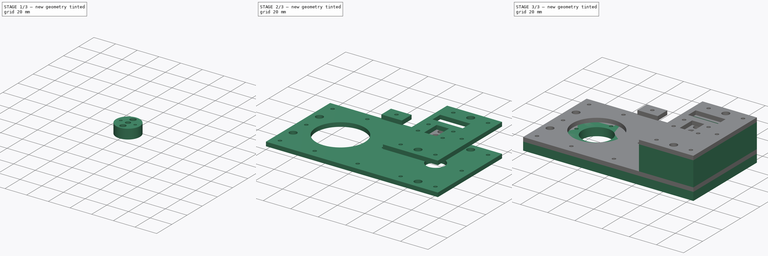
[diagram: build sequence overview — one tinted view per stage of 3, left to right]
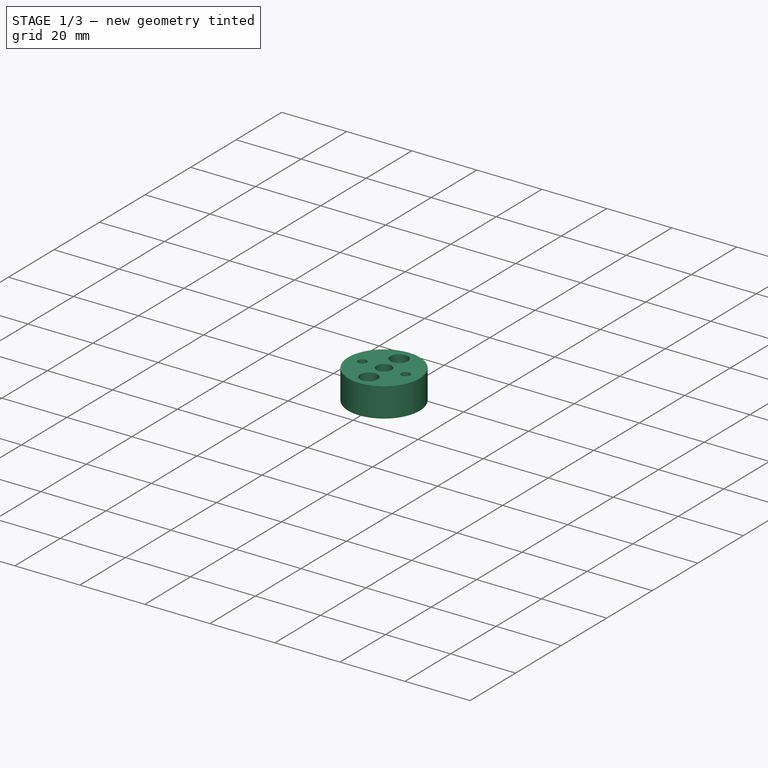
[diagram: stage 1 of 3 — iso view after this stage's code; geometry added in this stage tinted green]
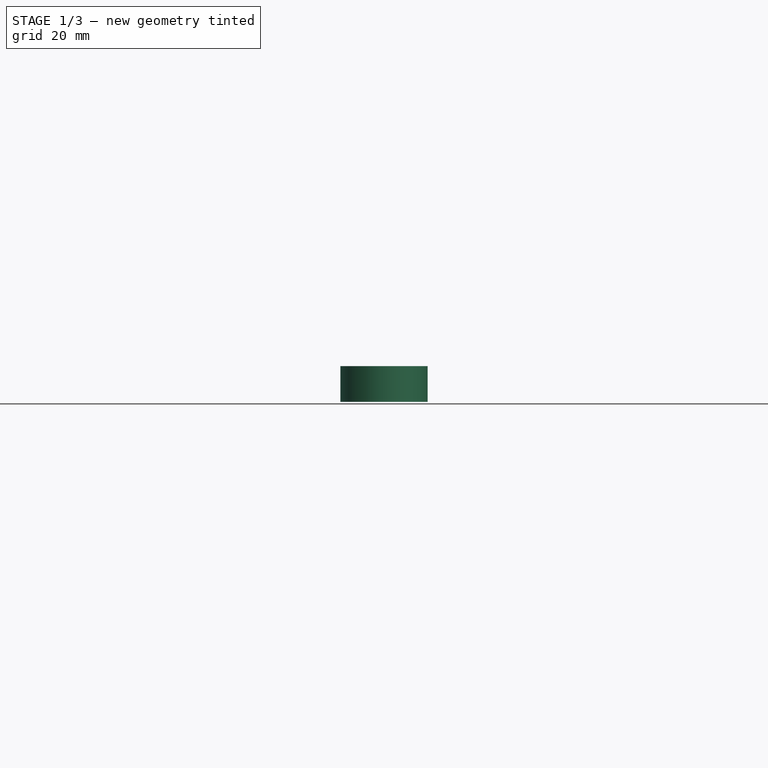
[diagram: stage 1 of 3 — front view after this stage's code; geometry added in this stage tinted green]
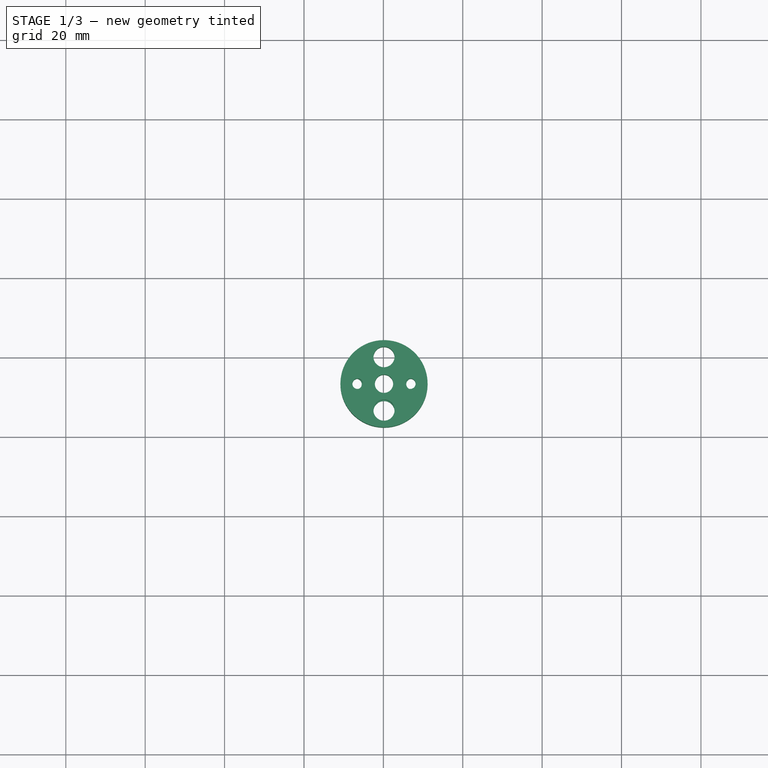
[diagram: stage 1 of 3 — top view after this stage's code; geometry added in this stage tinted green]
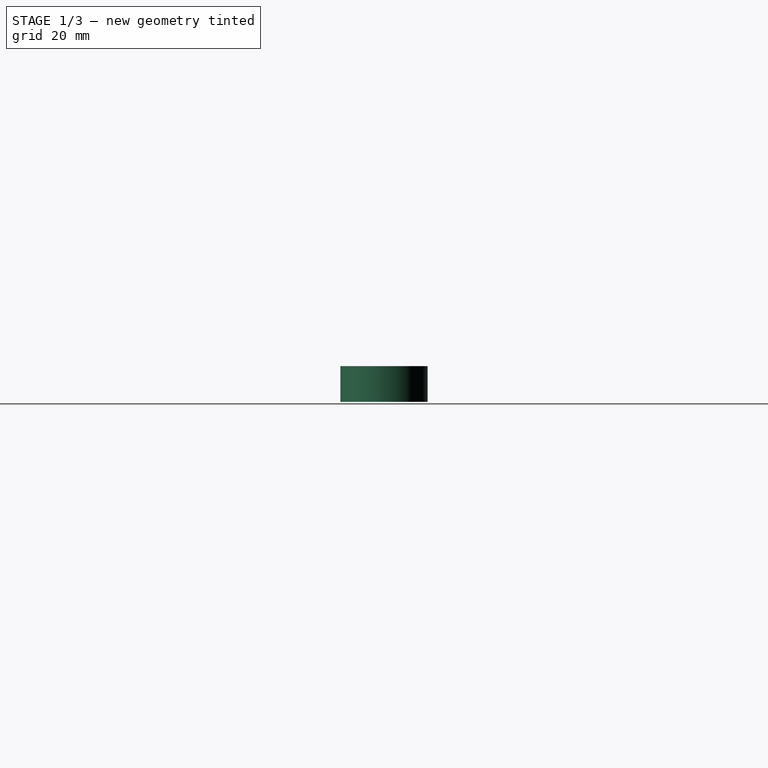
[diagram: stage 1 of 3 — right view after this stage's code; geometry added in this stage tinted green]
FCSTD DOCUMENT  (FreeCAD 0.16R6706 (Git))
Label: angular
License: All rights reserved
LicenseURL: http://en.wikipedia.org/wiki/All_rights_reserved
objects: Sketcher::SketchObject×7, PartDesign::Pad×7, App::MeasureDistance×4, Spreadsheet::Sheet×2
note: 21 computed .brp shape members not serialized (recipe doc carries the construction recipe); baked Part::Feature solids carry a one-line shape summary decoded from their .brp

FEATURE [App::MeasureDistance] Distance005  label="Distance: 26.1896 mm"
  Distance = 26.1896
  P1 = (60.7477,0,9)
  P2 = (34.5581,0,9)
FEATURE [Sketcher::SketchObject] Sketch006
  Placement = pos=(0,0,18) rot=(0,0,1;0rad)
  expr: Placement.Base.z = Measure.MAT_THICK * 6
  expr: Constraints[5] = Measure.BASE_WIDTH / 2
  expr: Constraints[4] = Measure.BASE_LEN
  expr: Constraints[3] = Measure.BASE_WIDTH / 2
  expr: Constraints[0] = Measure.MAT_THICK * 2 + Measure.SHAFT_DIAM
  expr: Constraints[2] = Measure.SHAFT_DIAM / 2 - Measure.KERF_FIT
  sketch-geometry (15):
    g0: Circle CenterX=100.16 CenterY=33.36 CenterZ=0 NormalX=0 NormalY=0 NormalZ=1 Radius=2.31
    g1: Circle CenterX=100.16 CenterY=33.36 CenterZ=0 NormalX=0 NormalY=0 NormalZ=1 Radius=10.98
    g2: GeomPoint [constr] X=125.16 Y=33.36 Z=0
    g3: Circle CenterX=100.16 CenterY=40.005 CenterZ=0 NormalX=0 NormalY=0 NormalZ=1 Radius=2.67
    g4: LineSegment [constr] StartX=100.16 StartY=33.36 StartZ=0 EndX=111.14 EndY=33.36 EndZ=0
    g5: LineSegment [constr] StartX=100.16 StartY=33.36 StartZ=0 EndX=100.16 EndY=44.34 EndZ=0
    g6: GeomPoint [constr] X=100.16 Y=35.67 Z=0
    g7: LineSegment [constr] StartX=100.16 StartY=33.36 StartZ=0 EndX=89.18 EndY=33.36 EndZ=0
    g8: LineSegment [constr] StartX=100.16 StartY=33.36 StartZ=0 EndX=100.16 EndY=22.38 EndZ=0
    g9: Circle CenterX=100.16 CenterY=26.715 CenterZ=0 NormalX=0 NormalY=0 NormalZ=1 Radius=2.67
    g10: GeomPoint [constr] X=97.85 Y=33.36 Z=0
    g11: GeomPoint [constr] X=100.16 Y=31.05 Z=0
    g12: GeomPoint [constr] X=102.47 Y=33.36 Z=0
    g13: Circle CenterX=106.805 CenterY=33.36 CenterZ=0 NormalX=0 NormalY=0 NormalZ=1 Radius=1.32
    g14: Circle CenterX=93.515 CenterY=33.36 CenterZ=0 NormalX=0 NormalY=0 NormalZ=1 Radius=1.32
  constraints (38):
    c: Radius(g1) = 10.98
    c: Coincident(g1,g0)
    c: Radius(g0) = 2.31
    c: DistanceY(g-1,g2) = 33.36
    c: DistanceX(g-2,g2) = 125.16
    c: DistanceY(g-1,g0) = 33.36
    c: Distance(g0,g2) = 25
    c: Radius(g3) = 2.67
    c: Coincident(g4,g0)
    c: Horizontal(g4)
    c: Coincident(g5,g0)
    c: Angle(g4,g5) = 1.5708
    c: PointOnObject(g3,g5)
    c: PointOnObject(g5,g1)
    c: PointOnObject(g4,g1)
    c: PointOnObject(g6,g0)
    c: PointOnObject(g6,g5)
    c: Symmetric(g6,g5,g3)
    c: Coincident(g7,g0)
    c: PointOnObject(g7,g1)
    c: Coincident(g8,g0)
    c: PointOnObject(g8,g1)
    c: Angle(g7,g4) = 3.14159
    c: Angle(g8,g4) = 1.5708
    c: Radius(g9) = 2.67
    c: PointOnObject(g9,g8)
    c: PointOnObject(g10,g0)
    c: PointOnObject(g10,g7)
    c: PointOnObject(g11,g0)
    c: PointOnObject(g11,g8)
    c: PointOnObject(g12,g0)
    c: PointOnObject(g12,g4)
    c: Symmetric(g8,g11,g9)
    c: Radius(g13) = 1.32
    c: PointOnObject(g13,g4)
    c: Symmetric(g12,g4,g13)
    c: Radius(g14) = 1.32
    c: Symmetric(g7,g10,g14)
FEATURE [PartDesign::Pad] Pad006  label="MAGNET_SHAFT_HOLDER"
  Length = 9
  Length2 = 100
  Placement = pos=(0,0,18) rot=(0,0,1;0rad)
  Sketch = -> Sketch006
  Type = 0
  expr: Length = Measure.MAT_THICK * 3
FEATURE [Sketcher::SketchObject] Sketch007
  Placement = pos=(0,0,27) rot=(0,0,1;0rad)
  expr: Placement.Base.z = Measure.MAT_THICK * 9
  expr: Constraints[5] = Measure.BASE_WIDTH / 2
  expr: Constraints[4] = Measure.BASE_LEN
  expr: Constraints[3] = Measure.BASE_WIDTH / 2
  expr: Constraints[0] = Measure.MAT_THICK * 2 + Measure.SHAFT_DIAM
  expr: Constraints[2] = 6.1 / 2 - Measure.KERF_FIT
  sketch-geometry (15):
    g0: Circle CenterX=100.16 CenterY=33.36 CenterZ=0 NormalX=0 NormalY=0 NormalZ=1 Radius=2.87
    g1: Circle CenterX=100.16 CenterY=33.36 CenterZ=0 NormalX=0 NormalY=0 NormalZ=1 Radius=10.98
    g2: GeomPoint [constr] X=125.16 Y=33.36 Z=0
    g3: Circle CenterX=100.16 CenterY=40.285 CenterZ=0 NormalX=0 NormalY=0 NormalZ=1 Radius=2.67
    g4: LineSegment [constr] StartX=100.16 StartY=33.36 StartZ=0 EndX=111.14 EndY=33.36 EndZ=0
    g5: LineSegment [constr] StartX=100.16 StartY=33.36 StartZ=0 EndX=100.16 EndY=44.34 EndZ=0
    g6: GeomPoint [constr] X=100.16 Y=36.23 Z=0
    g7: LineSegment [constr] StartX=100.16 StartY=33.36 StartZ=0 EndX=89.18 EndY=33.36 EndZ=0
    g8: LineSegment [constr] StartX=100.16 StartY=33.36 StartZ=0 EndX=100.16 EndY=22.38 EndZ=0
    g9: Circle CenterX=100.16 CenterY=26.435 CenterZ=0 NormalX=0 NormalY=0 NormalZ=1 Radius=2.67
    g10: GeomPoint [constr] X=97.29 Y=33.36 Z=0
    g11: GeomPoint [constr] X=100.16 Y=30.49 Z=0
    g12: GeomPoint [constr] X=103.03 Y=33.36 Z=0
    g13: Circle CenterX=107.085 CenterY=33.36 CenterZ=0 NormalX=0 NormalY=0 NormalZ=1 Radius=1.32
    g14: Circle CenterX=93.235 CenterY=33.36 CenterZ=0 NormalX=0 NormalY=0 NormalZ=1 Radius=1.32
  constraints (38):
    c: Radius(g1) = 10.98
    c: Coincident(g1,g0)
    c: Radius(g0) = 2.87
    c: DistanceY(g-1,g2) = 33.36
    c: DistanceX(g-2,g2) = 125.16
    c: DistanceY(g-1,g0) = 33.36
    c: Distance(g0,g2) = 25
    c: Radius(g3) = 2.67
    c: Coincident(g4,g0)
    c: Horizontal(g4)
    c: Coincident(g5,g0)
    c: Angle(g4,g5) = 1.5708
    c: PointOnObject(g3,g5)
    c: PointOnObject(g5,g1)
    c: PointOnObject(g4,g1)
    c: PointOnObject(g6,g0)
    c: PointOnObject(g6,g5)
    c: Symmetric(g6,g5,g3)
    c: Coincident(g7,g0)
    c: PointOnObject(g7,g1)
    c: Coincident(g8,g0)
    c: PointOnObject(g8,g1)
    c: Angle(g7,g4) = 3.14159
    c: Angle(g8,g4) = 1.5708
    c: Radius(g9) = 2.67
    c: PointOnObject(g9,g8)
    c: PointOnObject(g10,g0)
    c: PointOnObject(g10,g7)
    c: PointOnObject(g11,g0)
    c: PointOnObject(g11,g8)
    c: PointOnObject(g12,g0)
    c: PointOnObject(g12,g4)
    c: Symmetric(g8,g11,g9)
    c: Radius(g13) = 1.32
    c: PointOnObject(g13,g4)
    c: Symmetric(g12,g4,g13)
    c: Radius(g14) = 1.32
    c: Symmetric(g7,g10,g14)
FEATURE [PartDesign::Pad] Pad007
  Length = 3
  Length2 = 100
  Placement = pos=(0,0,18) rot=(0,0,1;0rad)
  Sketch = -> Sketch007
  Type = 0
  expr: Length = Measure.MAT_THICK
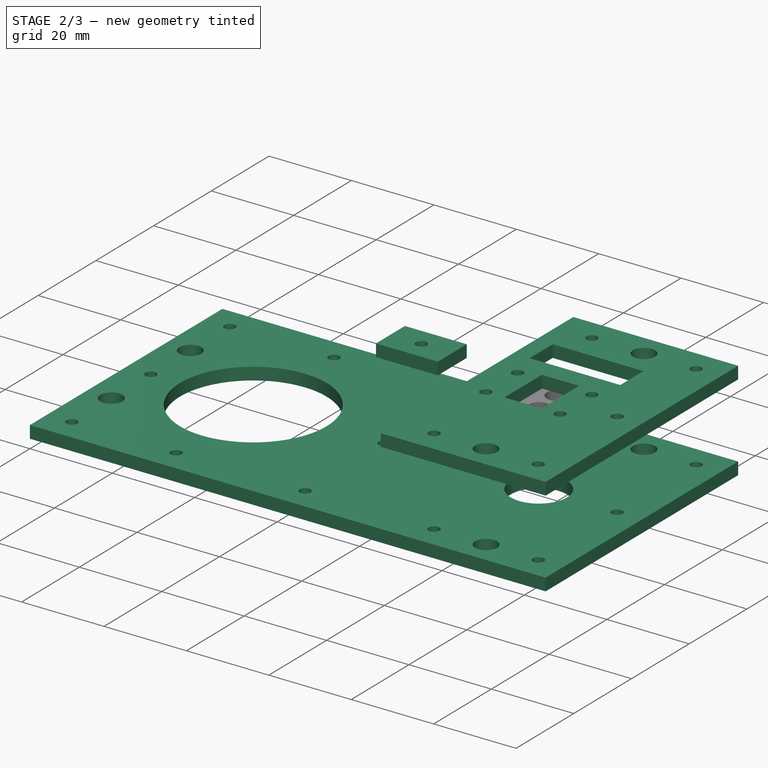
[diagram: stage 2 of 3 — iso view after this stage's code; geometry added in this stage tinted green]
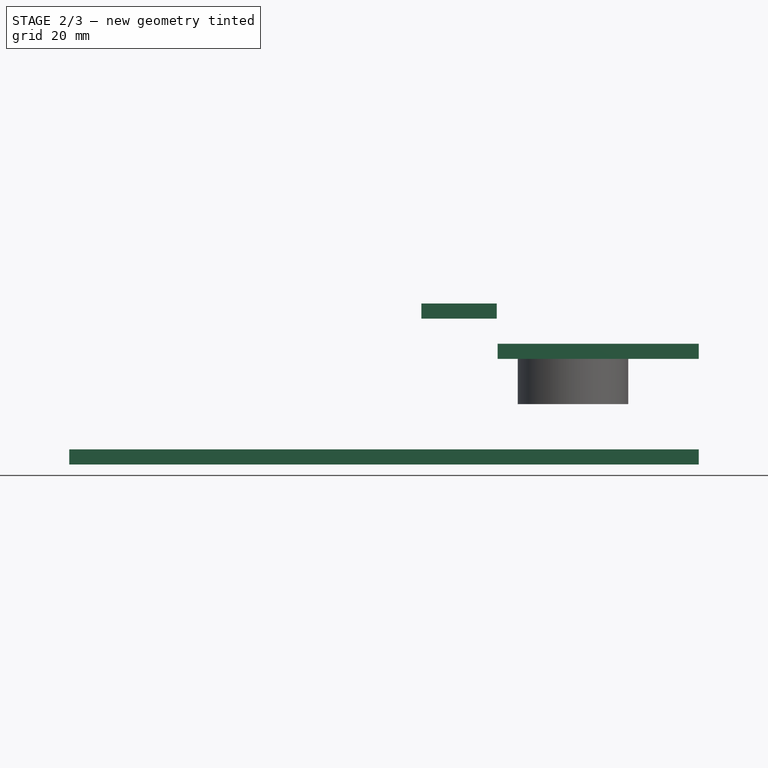
[diagram: stage 2 of 3 — front view after this stage's code; geometry added in this stage tinted green]
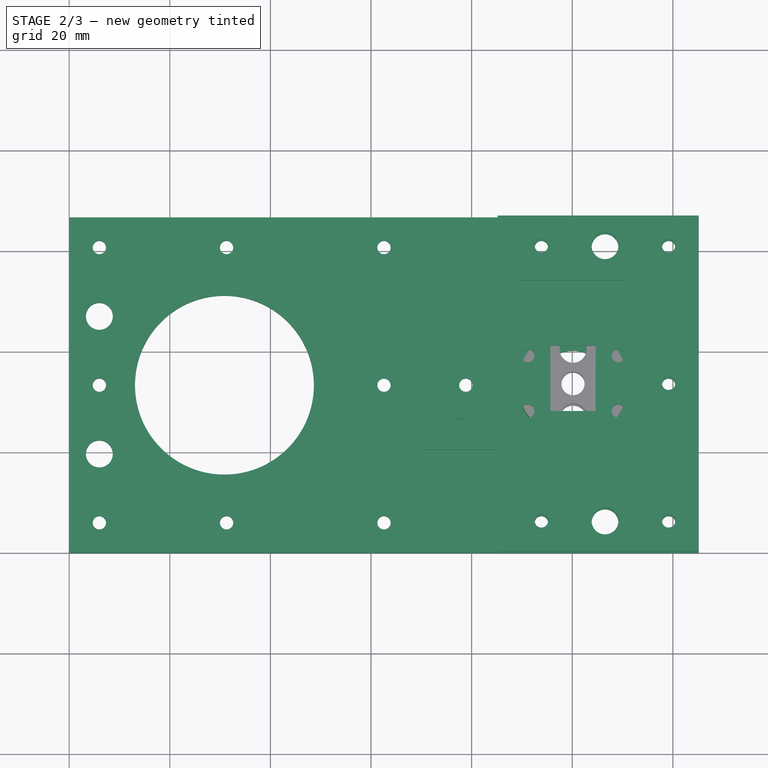
[diagram: stage 2 of 3 — top view after this stage's code; geometry added in this stage tinted green]
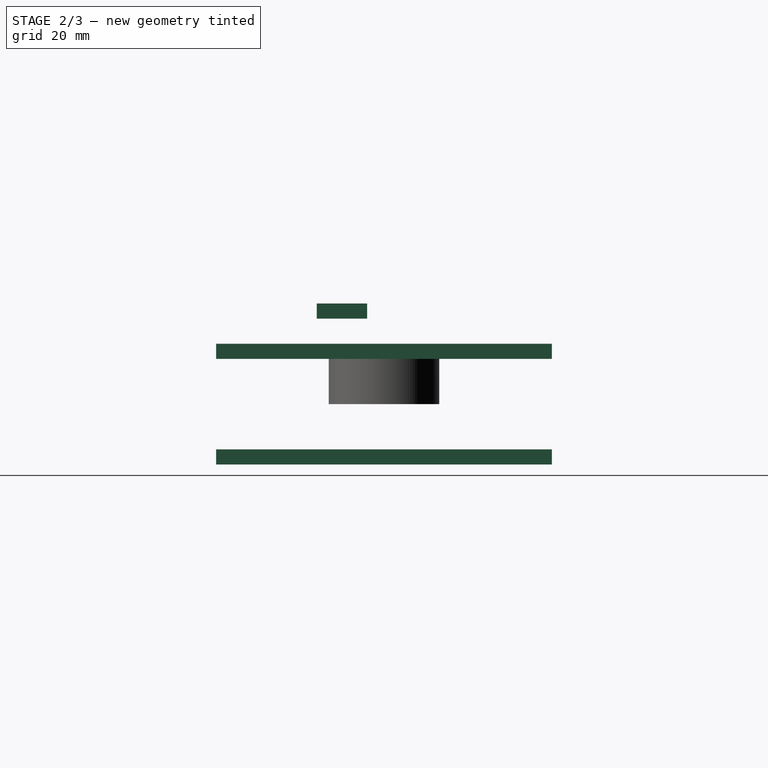
[diagram: stage 2 of 3 — right view after this stage's code; geometry added in this stage tinted green]
FEATURE [Sketcher::SketchObject] Sketch003
  Placement = pos=(0,0,27) rot=(0,0,1;0rad)
  expr: Constraints[62] = Measure001.DOWEL_DIAM / 2 + Measure001.KREF_FIT
  expr: Constraints[48] = Measure001.BASE_WIDTH
  expr: Constraints[8] = Measure001.ROT_SENS_LEN
  expr: Constraints[54] = 2 * Measure001.SCREW_DIAM
  expr: Constraints[61] = Measure001.DOWEL_DIAM / 2 + Measure001.KREF_FIT
  expr: Constraints[57] = 2 * Measure001.SCREW_DIAM
  expr: Constraints[51] = Measure001.SCREW_DIAM / 2 - Measure001.KREF_FIT
  expr: Constraints[50] = Measure001.SCREW_DIAM / 2 - Measure001.KREF_FIT
  expr: Constraints[60] = 3 / 4 * Measure001.BASE_LEN
  expr: Placement.Base.z = Measure001.MAT_THICK * 9
  expr: Constraints[37] = Measure001.BASE_LEN - 25
  expr: Constraints[47] = Measure001.BASE_LEN
  expr: Constraints[23] = Measure001.ROT_SENS_SCREW_WIDTH
  expr: Constraints[10] = 1.32mm
  expr: Constraints[58] = 2 * Measure001.SCREW_DIAM
  expr: Constraints[52] = Measure001.SCREW_DIAM / 2 - Measure001.KREF_FIT
  expr: Constraints[53] = 2 * Measure001.SCREW_DIAM
  expr: Constraints[9] = Measure001.ROT_SENS_WIDTH
  expr: Constraints[59] = 3 / 4 * Measure001.BASE_LEN
  expr: Constraints[55] = 2 * Measure001.SCREW_DIAM
  expr: Constraints[56] = 2 * Measure001.SCREW_DIAM
  expr: Constraints[36] = Measure001.BASE_WIDTH / 2
  expr: Constraints[24] = (Measure001.ROT_SENS_WIDTH - Measure001.ROT_SENS_SCREW_WIDTH) / 2
  expr: Constraints[25] = Measure001.ROT_SENS_SCREW_DIAM / 2 + 0.7
  expr: Constraints[89] = Measure001.SCREW_DIAM / 2 - Measure001.KREF_FIT
  expr: Constraints[22] = Measure001.ROT_SENSOR_SCREW_LEN
  sketch-geometry (34):
    g0: LineSegment [constr] StartX=89.16 StartY=53.86 StartZ=0 EndX=111.16 EndY=53.86 EndZ=0
    g1: LineSegment [constr] StartX=111.16 StartY=53.86 StartZ=0 EndX=111.16 EndY=25.86 EndZ=0
    g2: LineSegment [constr] StartX=111.16 StartY=25.86 StartZ=0 EndX=89.16 EndY=25.86 EndZ=0
    g3: LineSegment [constr] StartX=89.16 StartY=25.86 StartZ=0 EndX=89.16 EndY=53.86 EndZ=0
    g4: Circle CenterX=91.16 CenterY=38.86 CenterZ=0 NormalX=0 NormalY=0 NormalZ=1 Radius=1.32
    g5: Circle CenterX=91.16 CenterY=27.86 CenterZ=0 NormalX=0 NormalY=0 NormalZ=1 Radius=1.32
    g6: Circle CenterX=109.16 CenterY=27.86 CenterZ=0 NormalX=0 NormalY=0 NormalZ=1 Radius=1.32
    g7: Circle CenterX=109.16 CenterY=38.86 CenterZ=0 NormalX=0 NormalY=0 NormalZ=1 Radius=1.32
    g8: LineSegment [constr] StartX=91.16 StartY=38.86 StartZ=0 EndX=109.16 EndY=38.86 EndZ=0
    g9: LineSegment [constr] StartX=109.16 StartY=38.86 StartZ=0 EndX=109.16 EndY=27.86 EndZ=0
    g10: LineSegment [constr] StartX=109.16 StartY=27.86 StartZ=0 EndX=91.16 EndY=27.86 EndZ=0
    g11: LineSegment [constr] StartX=91.16 StartY=27.86 StartZ=0 EndX=91.16 EndY=38.86 EndZ=0
    g12: LineSegment [constr] StartX=91.16 StartY=38.86 StartZ=0 EndX=109.16 EndY=27.86 EndZ=0
    g13: LineSegment [constr] StartX=109.16 StartY=38.86 StartZ=0 EndX=91.16 EndY=27.86 EndZ=0
    g14: GeomPoint [constr] X=100.16 Y=33.36 Z=0
    g15: LineSegment StartX=85.16 StartY=66.72 StartZ=0 EndX=125.16 EndY=66.72 EndZ=0
    g16: LineSegment StartX=125.16 StartY=66.72 StartZ=0 EndX=125.16 EndY=0 EndZ=0
    g17: LineSegment StartX=125.16 StartY=0 StartZ=0 EndX=85.16 EndY=0 EndZ=0
    g18: LineSegment StartX=85.16 StartY=0 StartZ=0 EndX=85.16 EndY=66.72 EndZ=0
    g19: Circle CenterX=93.87 CenterY=60.72 CenterZ=0 NormalX=0 NormalY=0 NormalZ=1 Radius=1.32
    g20: Circle CenterX=119.16 CenterY=60.72 CenterZ=0 NormalX=0 NormalY=0 NormalZ=1 Radius=1.32
    g21: Circle CenterX=93.87 CenterY=6 CenterZ=0 NormalX=0 NormalY=0 NormalZ=1 Radius=1.32
    g22: Circle CenterX=119.16 CenterY=6 CenterZ=0 NormalX=0 NormalY=0 NormalZ=1 Radius=1.32
    g23: Circle CenterX=106.515 CenterY=60.72 CenterZ=0 NormalX=0 NormalY=0 NormalZ=1 Radius=2.67
    g24: Circle CenterX=106.515 CenterY=6 CenterZ=0 NormalX=0 NormalY=0 NormalZ=1 Radius=2.67
    g25: LineSegment StartX=95.66 StartY=40.86 StartZ=0 EndX=104.66 EndY=40.86 EndZ=0
    g26: LineSegment StartX=104.66 StartY=40.86 StartZ=0 EndX=104.66 EndY=27.86 EndZ=0
    g27: LineSegment StartX=104.66 StartY=27.86 StartZ=0 EndX=95.66 EndY=27.86 EndZ=0
    g28: LineSegment StartX=95.66 StartY=27.86 StartZ=0 EndX=95.66 EndY=40.86 EndZ=0
    g29: LineSegment StartX=89.16 StartY=53.86 StartZ=0 EndX=111.16 EndY=53.86 EndZ=0
    g30: LineSegment StartX=111.16 StartY=53.86 StartZ=0 EndX=111.16 EndY=45.86 EndZ=0
    g31: LineSegment StartX=111.16 StartY=45.86 StartZ=0 EndX=89.16 EndY=45.86 EndZ=0
    g32: LineSegment StartX=89.16 StartY=45.86 StartZ=0 EndX=89.16 EndY=53.86 EndZ=0
    g33: Circle CenterX=119.16 CenterY=33.36 CenterZ=0 NormalX=0 NormalY=0 NormalZ=1 Radius=1.32
  constraints (92):
    c: Coincident(g0,g1)
    c: Coincident(g1,g2)
    c: Coincident(g2,g3)
    c: Coincident(g3,g0)
    c: Horizontal(g0)
    c: Horizontal(g2)
    c: Vertical(g1)
    c: Vertical(g3)
    c: DistanceY(g3,g3) = 28
    c: DistanceX(g2,g2) = 22
    c: Radius(g4) = 1.32
    c: Equal(g4,g5) = 1.3
    c: Radius(g6) = 1.32
    c: Radius(g7) = 1.32
    c: Coincident(g8,g9)
    c: Coincident(g9,g10)
    c: Coincident(g10,g11)
    c: Coincident(g11,g8)
    c: Horizontal(g8)
    c: Horizontal(g10)
    c: Vertical(g9)
    c: Vertical(g11)
    c: DistanceY(g11,g11) = 11
    c: DistanceX(g10,g10) = 18
    c: DistanceX(g0,g8) = 2
    c: DistanceY(g1,g9) = 2
    c: Coincident(g4,g8)
    c: Coincident(g7,g8)
    c: Coincident(g5,g10)
    c: Coincident(g6,g9)
    c: Coincident(g12,g4)
    c: Coincident(g12,g6)
    c: Coincident(g13,g7)
    c: Coincident(g13,g5)
    c: PointOnObject(g14,g13)
    c: PointOnObject(g14,g12)
    c: DistanceY(g-1,g14) = 33.36
    c: DistanceX(g-2,g14) = 100.16
    c: Coincident(g15,g16)
    c: Coincident(g16,g17)
    c: Coincident(g17,g18)
    c: Coincident(g18,g15)
    c: Horizontal(g15)
    c: Horizontal(g17)
    c: Vertical(g16)
    c: Vertical(g18)
    c: PointOnObject(g16,g-1)
    c: DistanceX(g-2,g16) = 125.16
    c: DistanceY(g-1,g15) = 66.72
    c: Radius(g21) = 1.32
    c: Radius(g22) = 1.32
    c: Radius(g19) = 1.32
    c: Radius(g20) = 1.32
    c: Distance(g20,g15) = 6
    c: Distance(g20,g16) = 6
    c: Distance(g19,g15) = 6
    c: Distance(g21,g17) = 6
    c: Distance(g22,g16) = 6
    c: Distance(g22,g17) = 6
    c: DistanceX(g-2,g21) = 93.87
    c: DistanceX(g-2,g19) = 93.87
    c: Radius(g24) = 2.67
    c: Radius(g23) = 2.67
    c: Symmetric(g19,g20,g23)
    c: Symmetric(g21,g22,g24)
    c: Coincident(g25,g26)
    c: Coincident(g26,g27)
    c: Coincident(g27,g28)
    c: Coincident(g28,g25)
    c: Horizontal(g25)
    c: Horizontal(g27)
    c: Vertical(g26)
    c: Vertical(g28)
    c: PointOnObject(g27,g10)
    c: Distance(g27,g5) = 4.5
    c: Distance(g26,g6) = 4.5
    c: Coincident(g29,g30)
    c: Coincident(g30,g31)
    c: Coincident(g31,g32)
    c: Coincident(g32,g29)
    c: Horizontal(g29)
    c: Horizontal(g31)
    c: Vertical(g30)
    c: Vertical(g32)
    c: Distance(g32) = 8
    c: PointOnObject(g29,g0)
    c: PointOnObject(g29,g3)
    c: PointOnObject(g30,g1)
    c: Distance(g25,g0) = 13
    c: Radius(g33) = 1.32
    c: Symmetric(g20,g22,g33)
    c: Distance(g15,g16) = 40
FEATURE [App::MeasureDistance] Distance002  label="BASE 9mm"
  Distance = 9
  P1 = (125.16,0,0)
  P2 = (125.16,0,9)
FEATURE [App::MeasureDistance] Distance003  label="TOTAL 30mm"
  Distance = 30.0001
  P1 = (125.16,66.72,30)
  P2 = (125.16,66.6406,0)
FEATURE [App::MeasureDistance] Distance004  label="LIFT 18mm"
  Distance = 18
  P1 = (125.16,0,9)
  P2 = (125.16,0,27)
FEATURE [PartDesign::Pad] Pad003  label="SENSOR_HOLDER"
  Length = 3
  Length2 = 100
  Placement = pos=(0,0,27) rot=(0,0,1;0rad)
  Sketch = -> Sketch003
  Type = 0
  expr: Length = Measure001.MAT_THICK
FEATURE [Spreadsheet::Sheet] Spreadsheet001  label="Measure001"
  cells = A1=Gearbox Diameter; B1(GEAR_DIAM)=35.92; A2=Motor Dimensions; B2(MOTOR_DIM)=41.72; A3=Material Thickness; B3(MAT_THICK)=3; A4=Motor Shaft Lenght; B4(MOTOR_SHAFT_LEN)=20; A5=Gearbox Lenght; B5(MOTOR_GEAR_LENG)=23; A6=Base Lenght; B6(BASE_LEN)==3 * Measure.MOTOR_DIM; A7=Base Height; B7(BASE_HEI)==2 * Measure.MAT_THICK + Measure.MOTOR_DIM + 20; A8=Base Width; B8(BASE_WIDTH)==Measure.MOTOR_DIM + 25; A9=Dowel Lenght; B9=30; A10=Dowel Diameter; B10(DOWEL_DIAM)=4.98; A11=GT2 Gear Diameter; B11=15.91; A12=GT2 Gear Height; B12=16.07; A13=Motor Screw Diam; B13(SCREW_DIAM)=3; A14=Motor Screw Lenght; B14=5.92; A15=Motor Screw Lenght (adapt); B15=13.39; A16=Flanged Bearings Diameter; B16(FLANG_BEAR_DIAM)=14.02; A17=Material Tolerance; B17==0.4 + 0.1 * Measure.MAT_THICK; A18=Press Fit Overlapping; B18=0.005; A19=Motor Screw Distance; B19=31; A20=Gearbox Lenght (connect GT2); B20=27.65; A21=Kerf; B21(KERF)=0.16; A22=Pressure Fit; B22(PRESS_FIT)=0.1; A23=Kref + Fit; B23(KREF_FIT)==Measure.KERF / 2 + Measure.PRESS_FIT; A24=Bearing To Edge Dist; B24(BEAR_DIST)=25; A25=Rotary Sensor lenght; B25(ROT_SENS_LEN)=28; A26=Rotary Sensor width; B26(ROT_SENS_WIDTH)=22; A27=Rotary Sensor Screw Hole; B27(ROT_SENS_SCREW_DIAM)=2.6; A28=Rotary Sensor Distance; B28=1; A29=Rotary Sensor Screw Hole Width; B29(ROT_SENS_SCREW_WIDTH)=18; A30=Rotary Sensor Screw Hole Lenght; B30(ROT_SENSOR_SCREW_LEN)=11; A31=Motor Screw Distance; B31(GEAR_SCREW_DIST)=30; A32=Gearbox internal Diameter; B32(GEAR_INT_DIAM)=22.12
FEATURE [Sketcher::SketchObject] Sketch004
  Placement = pos=(0,0,6) rot=(0,0,1;0rad)
  expr: Constraints[66] = Measure.BASE_WIDTH / 2
  expr: Constraints[65] = Measure.DOWEL_DIAM / 2 + Spreadsheet.KERF_FIT
  expr: Constraints[54] = Measure.SCREW_DIAM / 2 - Spreadsheet.KERF_FIT
  expr: Constraints[61] = Measure.DOWEL_DIAM / 2 + Spreadsheet.KERF_FIT
  expr: Constraints[63] = Measure.DOWEL_DIAM / 2 + Spreadsheet.KERF_FIT
  expr: Constraints[24] = 2 * Measure.SCREW_DIAM
  expr: Constraints[40] = Measure.SCREW_DIAM / 2 - Spreadsheet.KERF_FIT
  expr: Constraints[31] = 3 / 4 * Measure.BASE_LEN
  expr: Constraints[32] = 1 / 4 * Measure.BASE_LEN
  expr: Constraints[33] = 2 * Measure.SCREW_DIAM
  expr: Constraints[34] = 2 * Measure.SCREW_DIAM
  expr: Constraints[57] = Measure.BASE_WIDTH / 2
  expr: Constraints[48] = Measure.SCREW_DIAM * 2
  expr: Constraints[8] = Measure.BASE_WIDTH
  expr: Constraints[16] = Measure.FLANG_BEAR_DIAM / 2 - Spreadsheet.KERF_FIT
  expr: Constraints[35] = Measure.SCREW_DIAM / 2 - Spreadsheet.KERF_FIT
  expr: Constraints[50] = Measure.SCREW_DIAM * 2
  expr: Constraints[46] = Measure.SCREW_DIAM / 2 - Spreadsheet.KERF_FIT
  expr: Constraints[13] = 10 + Measure.MOTOR_DIM / 2
  expr: Constraints[38] = Measure.BASE_LEN * 1 / 4
  expr: Constraints[9] = Measure.BASE_LEN
  expr: Constraints[53] = Measure.BASE_WIDTH / 2
  expr: Constraints[41] = Measure.SCREW_DIAM / 2 - Spreadsheet.KERF_FIT
  expr: Constraints[37] = Measure.SCREW_DIAM / 2 - Spreadsheet.KERF_FIT
  expr: Placement.Base.z = Measure.MAT_THICK * 2
  expr: Constraints[49] = Measure.SCREW_DIAM * 2
  expr: Constraints[47] = Measure.SCREW_DIAM * 2
  expr: Constraints[39] = Measure.SCREW_DIAM / 2 - Spreadsheet.KERF_FIT
  expr: Constraints[51] = 1 / 2 * Measure.BASE_LEN
  expr: Constraints[25] = 2 * Measure.SCREW_DIAM
  expr: Constraints[26] = 2 * Measure.SCREW_DIAM
  expr: Constraints[28] = 2 * Measure.SCREW_DIAM
  expr: Constraints[14] = Measure.BASE_WIDTH / 2
  expr: Constraints[29] = 2 * Measure.SCREW_DIAM
  expr: Constraints[30] = 3 / 4 * Measure.BASE_LEN
  expr: Constraints[42] = Measure.SCREW_DIAM / 2 - Spreadsheet.KERF_FIT
  expr: Constraints[43] = Measure.SCREW_DIAM / 2 - Spreadsheet.KERF_FIT
  expr: Constraints[55] = Measure.BASE_LEN / 2
  expr: Constraints[45] = Measure.SCREW_DIAM / 2 - Spreadsheet.KERF_FIT
  expr: Constraints[62] = Measure.DOWEL_DIAM / 2 + Spreadsheet.KERF_FIT
  expr: Constraints[58] = 0.63 * Measure001.BASE_LEN
  expr: Constraints[52] = 1 / 2 * Measure.BASE_LEN
  expr: Constraints[15] = Measure.BASE_WIDTH / 2
  expr: Constraints[44] = Measure.SCREW_DIAM / 2 - Spreadsheet.KERF_FIT
  expr: Constraints[11] = 0
  expr: Constraints[17] = Measure.BEAR_DIST
  expr: Constraints[56] = Measure.SCREW_DIAM / 2 - Spreadsheet.KERF_FIT
  expr: Constraints[36] = Measure.SCREW_DIAM / 2 - Spreadsheet.KERF_FIT
  expr: Constraints[12] = Measure.GEAR_DIAM / 2 - Spreadsheet.KERF_FIT
  sketch-geometry (24):
    g0: LineSegment StartX=0 StartY=66.72 StartZ=0 EndX=125.16 EndY=66.72 EndZ=0
    g1: LineSegment StartX=125.16 StartY=66.72 StartZ=0 EndX=125.16 EndY=0 EndZ=0
    g2: LineSegment StartX=125.16 StartY=0 StartZ=0 EndX=0 EndY=0 EndZ=0
    g3: LineSegment StartX=0 StartY=0 StartZ=0 EndX=0 EndY=66.72 EndZ=0
    g4: Circle CenterX=30.86 CenterY=33.36 CenterZ=0 NormalX=0 NormalY=0 NormalZ=1 Radius=17.78
    g5: Circle CenterX=100.16 CenterY=33.36 CenterZ=0 NormalX=0 NormalY=0 NormalZ=1 Radius=6.83
    g6: Circle CenterX=6 CenterY=60.72 CenterZ=0 NormalX=0 NormalY=0 NormalZ=1 Radius=1.32
    g7: Circle CenterX=6 CenterY=33.36 CenterZ=0 NormalX=0 NormalY=0 NormalZ=1 Radius=1.32
    g8: Circle CenterX=119.16 CenterY=60.72 CenterZ=0 NormalX=0 NormalY=0 NormalZ=1 Radius=1.32
    g9: Circle CenterX=119.16 CenterY=6 CenterZ=0 NormalX=0 NormalY=0 NormalZ=1 Radius=1.32
    g10: Circle CenterX=119.16 CenterY=33.36 CenterZ=0 NormalX=0 NormalY=0 NormalZ=1 Radius=1.32
    g11: Circle CenterX=93.87 CenterY=60.72 CenterZ=0 NormalX=0 NormalY=0 NormalZ=1 Radius=1.32
    g12: Circle CenterX=93.87 CenterY=6 CenterZ=0 NormalX=0 NormalY=0 NormalZ=1 Radius=1.32
    g13: Circle CenterX=31.29 CenterY=60.72 CenterZ=0 NormalX=0 NormalY=0 NormalZ=1 Radius=1.32
    g14: Circle CenterX=31.29 CenterY=6 CenterZ=0 NormalX=0 NormalY=0 NormalZ=1 Radius=1.32
    g15: Circle CenterX=62.58 CenterY=60.72 CenterZ=0 NormalX=0 NormalY=0 NormalZ=1 Radius=1.32
    g16: Circle CenterX=62.58 CenterY=6 CenterZ=0 NormalX=0 NormalY=0 NormalZ=1 Radius=1.32
    g17: Circle CenterX=6 CenterY=6 CenterZ=0 NormalX=0 NormalY=0 NormalZ=1 Radius=1.32
    g18: Circle CenterX=62.58 CenterY=33.36 CenterZ=0 NormalX=0 NormalY=0 NormalZ=1 Radius=1.32
    g19: Circle CenterX=78.8508 CenterY=33.36 CenterZ=0 NormalX=0 NormalY=0 NormalZ=1 Radius=1.32
    g20: Circle CenterX=106.515 CenterY=60.72 CenterZ=0 NormalX=0 NormalY=0 NormalZ=1 Radius=2.67
    g21: Circle CenterX=106.515 CenterY=6 CenterZ=0 NormalX=0 NormalY=0 NormalZ=1 Radius=2.67
    g22: Circle CenterX=6 CenterY=19.68 CenterZ=0 NormalX=0 NormalY=0 NormalZ=1 Radius=2.67
    g23: Circle CenterX=6 CenterY=47.04 CenterZ=0 NormalX=0 NormalY=0 NormalZ=1 Radius=2.67
  constraints (68):
    c: Coincident(g0,g1)
    c: Coincident(g1,g2)
    c: Coincident(g2,g3)
    c: Coincident(g3,g0)
    c: Horizontal(g0)
    c: Horizontal(g2)
    c: Vertical(g1)
    c: Vertical(g3)
    c: DistanceY(g3) = 66.72
    c: DistanceX(g0) = 125.16
    c: PointOnObject(g2,g-2)
    c: DistanceY(g2,g-1) = 0
    c: Radius(g4) = 17.78
    c: Distance(g4,g3) = 30.86
    c: Distance(g4,g0) = 33.36
    c: DistanceY(g-1,g5) = 33.36
    c: Radius(g5) = 6.83
    c: Distance(g5,g1) = 25
    c: Radius(g6) = 1.32
    c: Distance(g6,g0) = 6
    c: Distance(g6,g3) = 6
    c: Distance(g7,g3) = 6
    c: Distance(g8,g0) = 6
    c: Distance(g8,g1) = 6
    c: Distance(g9,g2) = 6
    c: Distance(g9,g1) = 6
    c: Distance(g10,g1) = 6
    c: Distance(g10,g2) = 33.36
    c: Distance(g11,g0) = 6
    c: Distance(g12,g2) = 6
    c: Distance(g12,g3) = 93.87
    c: Distance(g11,g3) = 93.87
    c: Distance(g13,g3) = 31.29
    c: Distance(g13,g0) = 6
    c: Distance(g14,g2) = 6
    c: Radius(g13) = 1.32
    c: Radius(g11) = 1.32
    c: Radius(g8) = 1.32
    c: Distance(g14,g3) = 31.29
    c: Radius(g7) = 1.32
    c: Radius(g10) = 1.32
    c: Radius(g9) = 1.32
    c: Radius(g12) = 1.32
    c: Radius(g14) = 1.32
    c: Radius(g15) = 1.32
    c: Radius(g17) = 1.32
    c: Radius(g16) = 1.32
    c: DistanceY(g-1,g16) = 6
    c: Distance(g15,g0) = 6
    c: Distance(g17,g2) = 6
    c: Distance(g17,g3) = 6
    c: Distance(g15,g3) = 62.58
    c: Distance(g16,g3) = 62.58
    c: Distance(g18,g0) = 33.36
    c: Radius(g18) = 1.32
    c: Distance(g18,g3) = 62.58
    c: Radius(g19) = 1.32
    c: Distance(g19,g2) = 33.36
    c: Distance(g19,g3) = 78.8508
    c: Symmetric(g11,g8,g20)
    c: Symmetric(g9,g12,g21)
    c: Radius(g20) = 2.67
    c: Radius(g21) = 2.67
    c: Radius(g22) = 2.67
    c: Symmetric(g7,g17,g22)
    c: Radius(g23) = 2.67
    c: Distance(g7,g2) = 33.36
    c: Symmetric(g6,g7,g23)
FEATURE [PartDesign::Pad] Pad004  label="BASE_MOTOR_HOLDER"
  Length = 3
  Length2 = 100
  Placement = pos=(0,0,6) rot=(0,0,1;0rad)
  Sketch = -> Sketch004
  Type = 0
  expr: Length = Measure.MAT_THICK
FEATURE [Sketcher::SketchObject] Sketch005
  Placement = pos=(0,0,35) rot=(0,0,1;0rad)
  expr: Constraints[17] = Measure.SCREW_DIAM / 2 - Spreadsheet.KERF_FIT
  sketch-geometry (8):
    g0: LineSegment StartX=70 StartY=30 StartZ=0 EndX=85 EndY=30 EndZ=0
    g1: LineSegment StartX=85 StartY=30 StartZ=0 EndX=85 EndY=20 EndZ=0
    g2: LineSegment StartX=85 StartY=20 StartZ=0 EndX=70 EndY=20 EndZ=0
    g3: LineSegment StartX=70 StartY=20 StartZ=0 EndX=70 EndY=30 EndZ=0
    g4: LineSegment [constr] StartX=70 StartY=30 StartZ=0 EndX=85 EndY=20 EndZ=0
    g5: LineSegment [constr] StartX=85 StartY=30 StartZ=0 EndX=70 EndY=20 EndZ=0
    g6: GeomPoint [constr] X=77.5 Y=25 Z=0
    g7: Circle CenterX=77.5 CenterY=25 CenterZ=0 NormalX=0 NormalY=0 NormalZ=1 Radius=1.32
  constraints (20):
    c: Coincident(g0,g1)
    c: Coincident(g1,g2)
    c: Coincident(g2,g3)
    c: Coincident(g3,g0)
    c: Horizontal(g0)
    c: Horizontal(g2)
    c: Vertical(g1)
    c: Vertical(g3)
    c: DistanceX(g0,g0) = 15
    c: DistanceY(g1,g1) = 10
    c: Coincident(g4,g0)
    c: Coincident(g4,g1)
    c: Coincident(g5,g0)
    c: Coincident(g5,g2)
    c: PointOnObject(g6,g5)
    c: PointOnObject(g6,g4)
    c: Coincident(g7,g6)
    c: Radius(g7) = 1.32
    c: DistanceX(g-2,g0) = 70
    c: DistanceY(g-1,g2) = 20
FEATURE [PartDesign::Pad] Pad005  label="GT2_FIT"
  Length = 3
  Length2 = 100
  Placement = pos=(0,0,35) rot=(0,0,1;0rad)
  Sketch = -> Sketch005
  Type = 0
  expr: Length = Measure.MAT_THICK
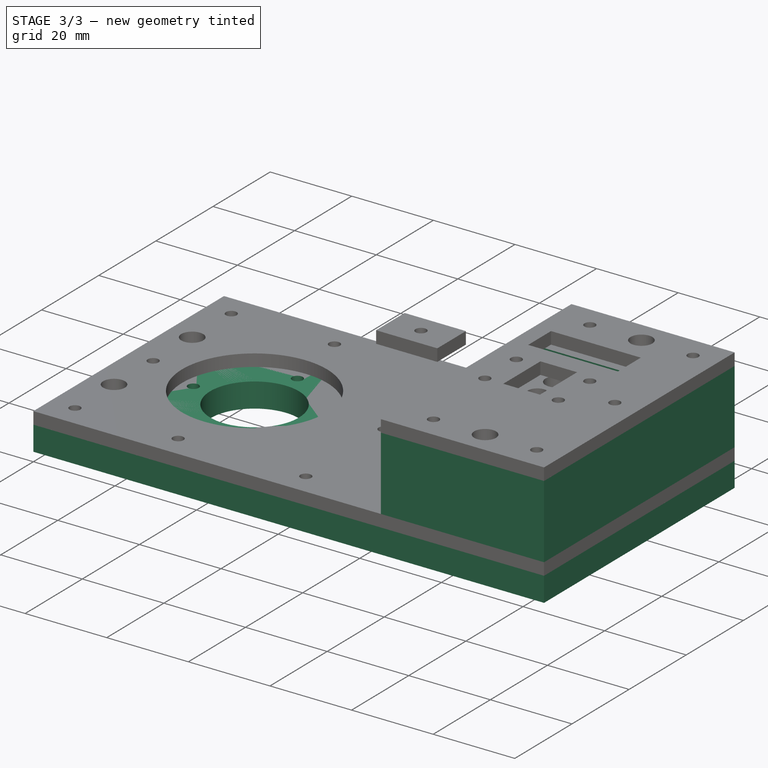
[diagram: stage 3 of 3 — iso view after this stage's code; geometry added in this stage tinted green]
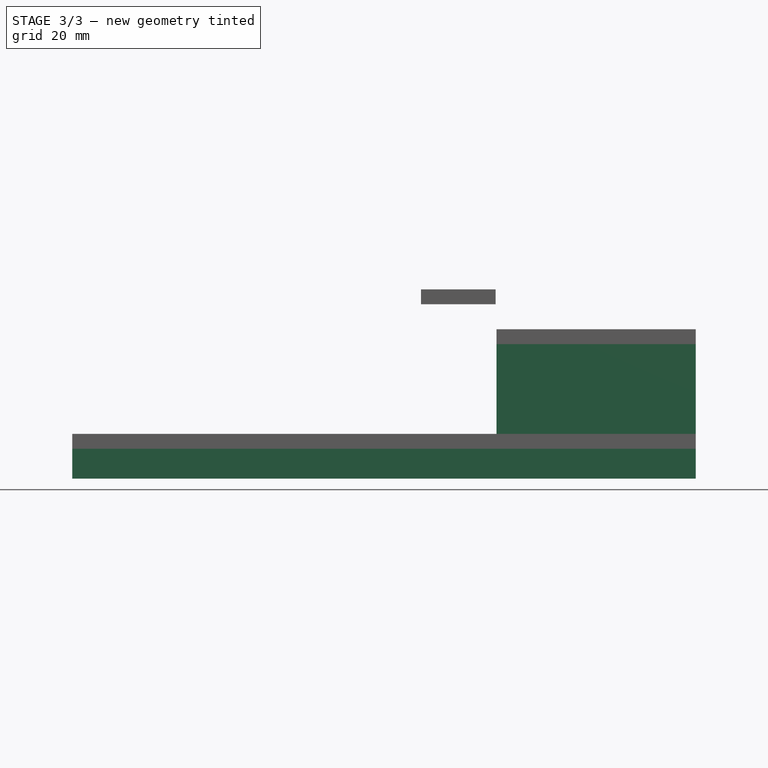
[diagram: stage 3 of 3 — front view after this stage's code; geometry added in this stage tinted green]
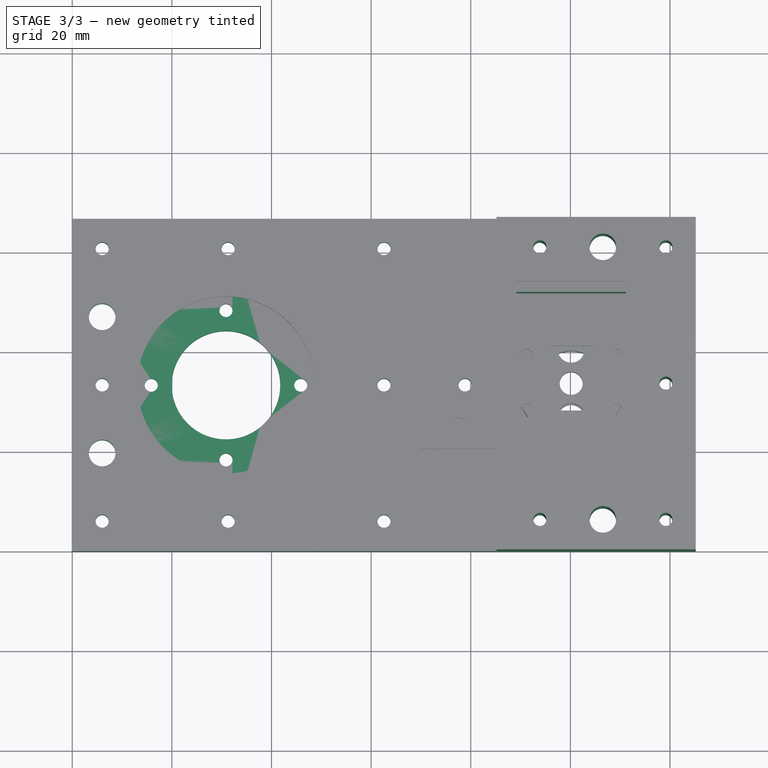
[diagram: stage 3 of 3 — top view after this stage's code; geometry added in this stage tinted green]
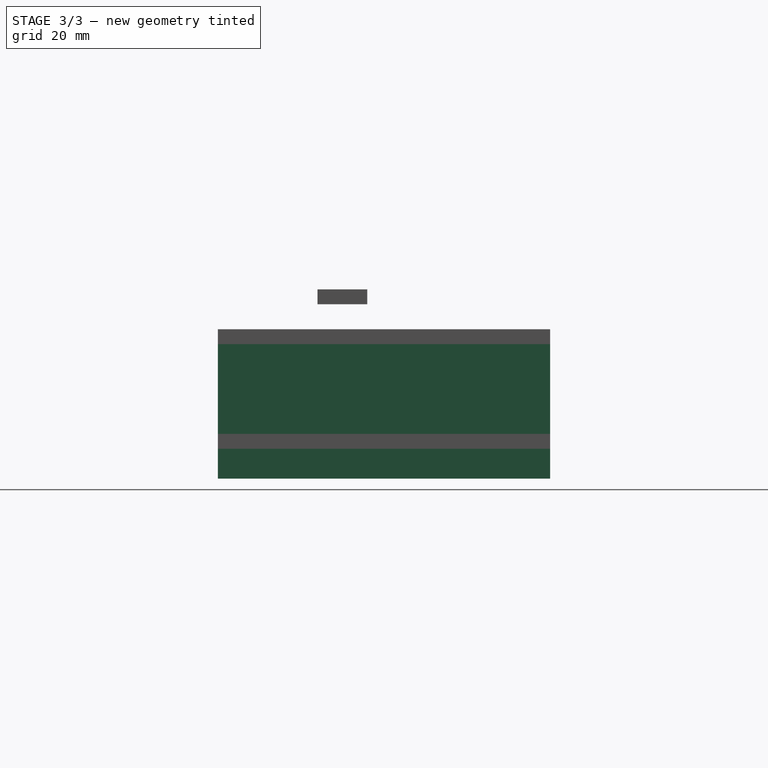
[diagram: stage 3 of 3 — right view after this stage's code; geometry added in this stage tinted green]
FEATURE [Spreadsheet::Sheet] Spreadsheet  label="Measure"
  cells = A1=Gearbox Diameter; B1(GEAR_DIAM)=35.92; A2=Motor Dimensions; B2(MOTOR_DIM)=41.72; A3=Material Thickness; B3(MAT_THICK)=3; A4=Motor Shaft Lenght; B4(MOTOR_SHAFT_LEN)=20; A5=Gearbox Lenght; B5(MOTOR_GEAR_LENG)=23; A6=Base Lenght; B6(BASE_LEN)==3 * Measure.MOTOR_DIM; A7=Base Height; B7(BASE_HEI)==2 * Measure.MAT_THICK + Measure.MOTOR_DIM + 20; A8=Base Width; B8(BASE_WIDTH)==Measure.MOTOR_DIM + 25; A9=Dowel Lenght; B9=30; A10=Dowel Diameter; B10(DOWEL_DIAM)=4.98; A11=GT2 Gear Diameter; B11=15.91; A12=GT2 Gear Height; B12=16.07; A13=Motor Screw Diam; B13(SCREW_DIAM)=3; A14=Motor Screw Lenght; B14=5.92; A15=Motor Screw Lenght (adapt); B15=13.39; A16=Flanged Bearings Diameter; B16(FLANG_BEAR_DIAM)=14.02; A17=Material Tolerance; B17==0.4 + 0.1 * Measure.MAT_THICK; A18=Press Fit Overlapping; B18=0.005; A19=Motor Screw Distance; B19=31; A20=Gearbox Lenght (connect GT2); B20=27.65; A21=Kerf; B21(KERF)=0.16; A22=Pressure Fit; B22(PRESS_FIT)=0.1; A23=Keef + Fit; B23(KERF_FIT)==Measure.KERF / 2 + Measure.PRESS_FIT; A24=Bearing To Edge Dist; B24(BEAR_DIST)=25; A25=Rotary Sensor lenght; B25(ROT_SENS_LEN)=28; A26=Rotary Sensor width; B26(ROT_SENS_WIDTH)=22; A27=Rotary Sensor Screw Hole; B27(ROT_SENS_SCREW_DIAM)=2.6; A28=Rotary Sensor Distance; B28=1; A29=Rotary Sensor Screw Hole Width; B29(ROT_SENS_SCREW_WIDTH)=18; A30=Rotary Sensor Screw Hole Lenght; B30(ROT_SENSOR_SCREW_LEN)=11; A31=Motor Screw Distance; B31(GEAR_SCREW_DIST)=30; A32=Gearbox internal Diameter; B32(GEAR_INT_DIAM)=22.12; A33=Shaft diameter; B33(SHAFT_DIAM)=4.98
FEATURE [Sketcher::SketchObject] Sketch002
  expr: Constraints[14] = Measure001.BASE_WIDTH / 2
  expr: Constraints[74] = Measure001.BASE_WIDTH / 2
  expr: Constraints[86] = Measure001.DOWEL_DIAM / 2 + Measure001.KREF_FIT
  expr: Constraints[82] = Measure001.DOWEL_DIAM / 2 + Measure001.KREF_FIT
  expr: Constraints[79] = 0.63 * Measure001.BASE_LEN
  expr: Constraints[78] = Measure001.BASE_WIDTH / 2
  expr: Constraints[70] = Measure001.SCREW_DIAM * 2
  expr: Constraints[58] = Measure001.SCREW_DIAM / 2 - Measure001.KREF_FIT
  expr: Constraints[15] = Measure001.BASE_WIDTH / 2
  expr: Constraints[52] = 3 / 4 * Measure001.BASE_LEN
  expr: Constraints[32] = Measure001.GEAR_SCREW_DIST / 2
  expr: Constraints[68] = Measure001.SCREW_DIAM * 2
  expr: Constraints[16] = Measure001.FLANG_BEAR_DIAM / 2 - Measure001.KREF_FIT
  expr: Constraints[25] = Measure001.SCREW_DIAM / 2 - Measure001.KREF_FIT
  expr: Constraints[84] = Measure001.DOWEL_DIAM / 2 + Measure001.KREF_FIT
  expr: Constraints[66] = Measure001.SCREW_DIAM / 2 - Measure001.KREF_FIT
  expr: Constraints[56] = Measure001.SCREW_DIAM / 2 - Measure001.KREF_FIT
  expr: Constraints[83] = Measure001.DOWEL_DIAM / 2 + Measure001.KREF_FIT
  expr: Constraints[20] = Measure001.GEAR_SCREW_DIST / 2
  expr: Constraints[76] = Measure001.BASE_LEN / 2
  expr: Constraints[64] = Measure001.SCREW_DIAM / 2 - Measure001.KREF_FIT
  expr: Constraints[72] = 1 / 2 * Measure001.BASE_LEN
  expr: Constraints[54] = 2 * Measure001.SCREW_DIAM
  expr: Constraints[61] = Measure001.SCREW_DIAM / 2 - Measure001.KREF_FIT
  expr: Constraints[17] = Measure001.BEAR_DIST
  expr: Constraints[65] = Measure001.SCREW_DIAM / 2 - Measure001.KREF_FIT
  expr: Constraints[62] = Measure001.SCREW_DIAM / 2 - Measure001.KREF_FIT
  expr: Constraints[48] = Measure001.BASE_WIDTH / 2
  expr: Constraints[8] = Measure001.BASE_WIDTH
  expr: Constraints[71] = Measure001.SCREW_DIAM * 2
  expr: Constraints[23] = Measure001.GEAR_SCREW_DIST / 2
  expr: Constraints[30] = Measure001.SCREW_DIAM / 2 - Measure001.KREF_FIT
  expr: Constraints[27] = Measure001.GEAR_SCREW_DIST / 2
  expr: Constraints[46] = 2 * Measure001.SCREW_DIAM
  expr: Constraints[60] = Measure001.SCREW_DIAM / 2 - Measure001.KREF_FIT
  expr: Constraints[13] = 10 + Measure001.MOTOR_DIM / 2
  expr: Constraints[50] = 2 * Measure001.SCREW_DIAM
  expr: Constraints[35] = Measure001.SCREW_DIAM / 2 - Measure001.KREF_FIT
  expr: Constraints[11] = 0
  expr: Constraints[38] = Measure001.SCREW_DIAM / 2 - Measure001.KREF_FIT
  expr: Constraints[77] = Measure001.SCREW_DIAM / 2 - Measure001.KREF_FIT
  expr: Constraints[39] = Measure001.SCREW_DIAM * 2
  expr: Constraints[47] = 2 * Measure001.SCREW_DIAM
  expr: Constraints[73] = 1 / 2 * Measure001.BASE_LEN
  expr: Constraints[75] = Measure001.SCREW_DIAM / 2 - Measure001.KREF_FIT
  expr: Constraints[49] = 2 * Measure001.SCREW_DIAM
  expr: Constraints[69] = Measure001.SCREW_DIAM * 2
  expr: Constraints[37] = Measure001.SCREW_DIAM / 2 - Measure001.KREF_FIT
  expr: Placement.Base.z = 0
  expr: Constraints[51] = 3 / 4 * Measure001.BASE_LEN
  expr: Constraints[57] = Measure001.SCREW_DIAM / 2 - Measure001.KREF_FIT
  expr: Constraints[59] = Measure001.BASE_LEN * 1 / 4
  expr: Constraints[55] = 2 * Measure001.SCREW_DIAM
  expr: Constraints[45] = 2 * Measure001.SCREW_DIAM
  expr: Constraints[53] = 1 / 4 * Measure001.BASE_LEN
  expr: Constraints[9] = Measure001.BASE_LEN
  expr: Constraints[63] = Measure001.SCREW_DIAM / 2 - Measure001.KREF_FIT
  expr: Constraints[67] = Measure001.SCREW_DIAM / 2 - Measure001.KREF_FIT
  expr: Constraints[12] = Measure001.GEAR_INT_DIAM / 2 - Measure001.KREF_FIT
  expr: Constraints[40] = 2 * Measure001.SCREW_DIAM
  sketch-geometry (32):
    g0: LineSegment StartX=0 StartY=66.72 StartZ=0 EndX=125.16 EndY=66.72 EndZ=0
    g1: LineSegment StartX=125.16 StartY=66.72 StartZ=0 EndX=125.16 EndY=0 EndZ=0
    g2: LineSegment StartX=125.16 StartY=0 StartZ=0 EndX=0 EndY=0 EndZ=0
    g3: LineSegment StartX=0 StartY=0 StartZ=0 EndX=0 EndY=66.72 EndZ=0
    g4: Circle CenterX=30.86 CenterY=33.36 CenterZ=0 NormalX=0 NormalY=0 NormalZ=1 Radius=10.88
    g5: Circle CenterX=100.16 CenterY=33.36 CenterZ=0 NormalX=0 NormalY=0 NormalZ=1 Radius=6.83
    g6: LineSegment [constr] StartX=30.86 StartY=33.36 StartZ=0 EndX=45.86 EndY=33.36 EndZ=0
    g7: LineSegment [constr] StartX=30.86 StartY=33.36 StartZ=0 EndX=15.86 EndY=33.36 EndZ=0
    g8: Circle CenterX=15.86 CenterY=33.36 CenterZ=0 NormalX=0 NormalY=0 NormalZ=1 Radius=1.32
    g9: LineSegment [constr] StartX=30.86 StartY=33.36 StartZ=0 EndX=30.86 EndY=48.36 EndZ=0
    g10: Circle CenterX=30.86 CenterY=48.36 CenterZ=0 NormalX=0 NormalY=0 NormalZ=1 Radius=1.32
    g11: Circle CenterX=30.86 CenterY=18.36 CenterZ=0 NormalX=0 NormalY=0 NormalZ=1 Radius=1.32
    g12: LineSegment [constr] StartX=30.86 StartY=33.36 StartZ=0 EndX=30.86 EndY=18.36 EndZ=0
    g13: Circle CenterX=45.86 CenterY=33.36 CenterZ=0 NormalX=0 NormalY=0 NormalZ=1 Radius=1.32
    g14: Circle CenterX=6 CenterY=60.72 CenterZ=0 NormalX=0 NormalY=0 NormalZ=1 Radius=1.32
    g15: Circle CenterX=6 CenterY=33.36 CenterZ=0 NormalX=0 NormalY=0 NormalZ=1 Radius=1.32
    g16: Circle CenterX=119.16 CenterY=60.72 CenterZ=0 NormalX=0 NormalY=0 NormalZ=1 Radius=1.32
    g17: Circle CenterX=119.16 CenterY=6 CenterZ=0 NormalX=0 NormalY=0 NormalZ=1 Radius=1.32
    g18: Circle CenterX=119.16 CenterY=33.36 CenterZ=0 NormalX=0 NormalY=0 NormalZ=1 Radius=1.32
    g19: Circle CenterX=93.87 CenterY=60.72 CenterZ=0 NormalX=0 NormalY=0 NormalZ=1 Radius=1.32
    g20: Circle CenterX=93.87 CenterY=6 CenterZ=0 NormalX=0 NormalY=0 NormalZ=1 Radius=1.32
    g21: Circle CenterX=31.29 CenterY=60.72 CenterZ=0 NormalX=0 NormalY=0 NormalZ=1 Radius=1.32
    g22: Circle CenterX=31.29 CenterY=6 CenterZ=0 NormalX=0 NormalY=0 NormalZ=1 Radius=1.32
    g23: Circle CenterX=62.58 CenterY=60.72 CenterZ=0 NormalX=0 NormalY=0 NormalZ=1 Radius=1.32
    g24: Circle CenterX=62.58 CenterY=6 CenterZ=0 NormalX=0 NormalY=0 NormalZ=1 Radius=1.32
    g25: Circle CenterX=6 CenterY=6 CenterZ=0 NormalX=0 NormalY=0 NormalZ=1 Radius=1.32
    g26: Circle CenterX=62.58 CenterY=33.36 CenterZ=0 NormalX=0 NormalY=0 NormalZ=1 Radius=1.32
    g27: Circle CenterX=78.8508 CenterY=33.36 CenterZ=0 NormalX=0 NormalY=0 NormalZ=1 Radius=1.32
    g28: Circle CenterX=106.515 CenterY=60.72 CenterZ=0 NormalX=0 NormalY=0 NormalZ=1 Radius=2.67
    g29: Circle CenterX=106.515 CenterY=6 CenterZ=0 NormalX=0 NormalY=0 NormalZ=1 Radius=2.67
    g30: Circle CenterX=6 CenterY=19.68 CenterZ=0 NormalX=0 NormalY=0 NormalZ=1 Radius=2.67
    g31: Circle CenterX=6 CenterY=47.04 CenterZ=0 NormalX=0 NormalY=0 NormalZ=1 Radius=2.67
  constraints (88):
    c: Coincident(g0,g1)
    c: Coincident(g1,g2)
    c: Coincident(g2,g3)
    c: Coincident(g3,g0)
    c: Horizontal(g0)
    c: Horizontal(g2)
    c: Vertical(g1)
    c: Vertical(g3)
    c: DistanceY(g3) = 66.72
    c: DistanceX(g0) = 125.16
    c: PointOnObject(g2,g-2)
    c: DistanceY(g2,g-1) = 0
    c: Radius(g4) = 10.88
    c: Distance(g4,g3) = 30.86
    c: Distance(g4,g0) = 33.36
    c: DistanceY(g-1,g5) = 33.36
    c: Radius(g5) = 6.83
    c: Distance(g5,g1) = 25
    c: Coincident(g6,g4)
    c: Horizontal(g6)
    c: DistanceX(g6,g6) = 15
    c: Coincident(g7,g4)
    c: Angle(g6,g7) = 3.14159
    c: Distance(g7) = 15
    c: Coincident(g8,g7)
    c: Radius(g8) = 1.32
    c: Coincident(g9,g4)
    c: Distance(g9) = 15
    c: Angle(g6,g9) = 1.5708
    c: Coincident(g10,g9)
    c: Radius(g10) = 1.32
    c: Coincident(g12,g4)
    c: Distance(g12) = 15
    c: Angle(g12,g6) = 1.5708
    c: Coincident(g11,g12)
    c: Radius(g13) = 1.32
    c: Coincident(g13,g6)
    c: Radius(g11) = 1.32
    c: Radius(g14) = 1.32
    c: Distance(g14,g0) = 6
    c: Distance(g14,g3) = 6
    c: Distance(g15,g3) = 6
    c: PointOnObject(g15,g6)
    c: Distance(g16,g0) = 6
    c: Distance(g16,g1) = 6
    c: Distance(g17,g2) = 6
    c: Distance(g17,g1) = 6
    c: Distance(g18,g1) = 6
    c: Distance(g18,g2) = 33.36
    c: Distance(g19,g0) = 6
    c: Distance(g20,g2) = 6
    c: Distance(g20,g3) = 93.87
    c: Distance(g19,g3) = 93.87
    c: Distance(g21,g3) = 31.29
    c: Distance(g21,g0) = 6
    c: Distance(g22,g2) = 6
    c: Radius(g21) = 1.32
    c: Radius(g19) = 1.32
    c: Radius(g16) = 1.32
    c: Distance(g22,g3) = 31.29
    c: Radius(g15) = 1.32
    c: Radius(g18) = 1.32
    c: Radius(g17) = 1.32
    c: Radius(g20) = 1.32
    c: Radius(g22) = 1.32
    c: Radius(g23) = 1.32
    c: Radius(g25) = 1.32
    c: Radius(g24) = 1.32
    c: DistanceY(g-1,g24) = 6
    c: Distance(g23,g0) = 6
    c: Distance(g25,g2) = 6
    c: Distance(g25,g3) = 6
    c: Distance(g23,g3) = 62.58
    c: Distance(g24,g3) = 62.58
    c: Distance(g26,g0) = 33.36
    c: Radius(g26) = 1.32
    c: Distance(g26,g3) = 62.58
    c: Radius(g27) = 1.32
    c: Distance(g27,g2) = 33.36
    c: Distance(g27,g3) = 78.8508
    c: Symmetric(g19,g16,g28)
    c: Symmetric(g17,g20,g29)
    c: Radius(g28) = 2.67
    c: Radius(g29) = 2.67
    c: Radius(g30) = 2.67
    c: Symmetric(g15,g25,g30)
    c: Radius(g31) = 2.67
    c: Symmetric(g14,g15,g31)
FEATURE [PartDesign::Pad] Pad002  label="BASE"
  Length = 6
  Length2 = 100
  Sketch = -> Sketch002
  Type = 0
  expr: Length = Measure001.MAT_THICK * 2
FEATURE [Sketcher::SketchObject] Sketch
  Placement = pos=(0,0,9) rot=(0,0,1;0rad)
  expr: Constraints[38] = Measure.SCREW_DIAM * 2
  expr: Constraints[35] = 3 / 4 * Measure.BASE_LEN
  expr: Constraints[30] = 2 * Measure.SCREW_DIAM
  expr: Constraints[34] = 2 * Measure.SCREW_DIAM
  expr: Constraints[29] = 2 * Measure.SCREW_DIAM
  expr: Constraints[40] = Measure.DOWEL_DIAM / 2 + Spreadsheet.KERF_FIT
  expr: Constraints[36] = 3 / 4 * Measure.BASE_LEN
  expr: Constraints[31] = 2 * Measure.SCREW_DIAM
  expr: Constraints[24] = Measure.SCREW_DIAM / 2 - Spreadsheet.KERF_FIT
  expr: Constraints[33] = 2 * Measure.SCREW_DIAM
  expr: Constraints[32] = 2 * Measure.SCREW_DIAM
  expr: Constraints[23] = Measure.BASE_LEN
  expr: Constraints[39] = Measure.DOWEL_DIAM / 2 + Spreadsheet.KERF_FIT
  expr: Constraints[37] = Measure.BASE_WIDTH / 2
  expr: Placement.Base.z = Measure.MAT_THICK * 3
  expr: Constraints[18] = Measure.BASE_WIDTH
  sketch-geometry (15):
    g0: LineSegment StartX=85.16 StartY=66.72 StartZ=0 EndX=125.16 EndY=66.72 EndZ=0
    g1: LineSegment StartX=125.16 StartY=66.72 StartZ=0 EndX=125.16 EndY=0 EndZ=0
    g2: LineSegment StartX=125.16 StartY=0 StartZ=0 EndX=85.16 EndY=0 EndZ=0
    g3: LineSegment StartX=85.16 StartY=0 StartZ=0 EndX=85.16 EndY=15 EndZ=0
    g4: LineSegment StartX=85.16 StartY=15 StartZ=0 EndX=115.16 EndY=15 EndZ=0
    g5: LineSegment StartX=115.16 StartY=15 StartZ=0 EndX=115.16 EndY=51.72 EndZ=0
    g6: LineSegment StartX=115.16 StartY=51.72 StartZ=0 EndX=85.16 EndY=51.72 EndZ=0
    g7: LineSegment StartX=85.16 StartY=51.72 StartZ=0 EndX=85.16 EndY=66.72 EndZ=0
    g8: Circle CenterX=93.87 CenterY=60.72 CenterZ=0 NormalX=0 NormalY=0 NormalZ=1 Radius=1.32
    g9: Circle CenterX=119.16 CenterY=60.72 CenterZ=0 NormalX=0 NormalY=0 NormalZ=1 Radius=1.32
    g10: Circle CenterX=119.16 CenterY=33.36 CenterZ=0 NormalX=0 NormalY=0 NormalZ=1 Radius=1.32
    g11: Circle CenterX=119.16 CenterY=6 CenterZ=0 NormalX=0 NormalY=0 NormalZ=1 Radius=1.32
    g12: Circle CenterX=93.87 CenterY=6 CenterZ=0 NormalX=0 NormalY=0 NormalZ=1 Radius=1.32
    g13: Circle CenterX=106.515 CenterY=60.72 CenterZ=0 NormalX=0 NormalY=0 NormalZ=1 Radius=2.67
    g14: Circle CenterX=106.515 CenterY=6 CenterZ=0 NormalX=0 NormalY=0 NormalZ=1 Radius=2.67
  constraints (43):
    c: Horizontal(g0)
    c: Coincident(g1,g0)
    c: Vertical(g1)
    c: Coincident(g2,g1)
    c: Coincident(g3,g2)
    c: Coincident(g4,g3)
    c: Horizontal(g4)
    c: Coincident(g5,g4)
    c: Vertical(g5)
    c: Coincident(g6,g5)
    c: Coincident(g7,g6)
    c: Coincident(g7,g0)
    c: Vertical(g7)
    c: Vertical(g3)
    c: Horizontal(g6)
    c: Horizontal(g2)
    c: DistanceY(g3,g3) = 15
    c: DistanceY(g7,g7) = 15
    c: DistanceY(g1,g1) = 66.72
    c: PointOnObject(g1,g-1)
    c: DistanceX(g6,g6) = 30
    c: Equal(g6,g4)
    c: DistanceX(g0,g0) = 40
    c: DistanceX(g-2,g0) = 125.16
    c: Radius(g12) = 1.32
    c: Equal(g12,g11)
    c: Equal(g12,g9)
    c: Equal(g12,g10)
    c: Equal(g12,g8)
    c: Distance(g8,g0) = 6
    c: Distance(g9,g0) = 6
    c: Distance(g12,g2) = 6
    c: Distance(g11,g2) = 6
    c: Distance(g11,g1) = 6
    c: Distance(g9,g1) = 6
    c: DistanceX(g-2,g8) = 93.87
    c: DistanceX(g-2,g12) = 93.87
    c: DistanceY(g-1,g10) = 33.36
    c: Distance(g10,g1) = 6
    c: Radius(g13) = 2.67
    c: Radius(g14) = 2.67
    c: Symmetric(g8,g9,g13)
    c: Symmetric(g11,g12,g14)
FEATURE [PartDesign::Pad] Pad  label="LIFTER_SENSOR_PLATFORM"
  Length = 18
  Length2 = 100
  Placement = pos=(0,0,9) rot=(0,0,1;0rad)
  Sketch = -> Sketch
  Type = 0
  expr: Length = 6 * Measure001.MAT_THICK
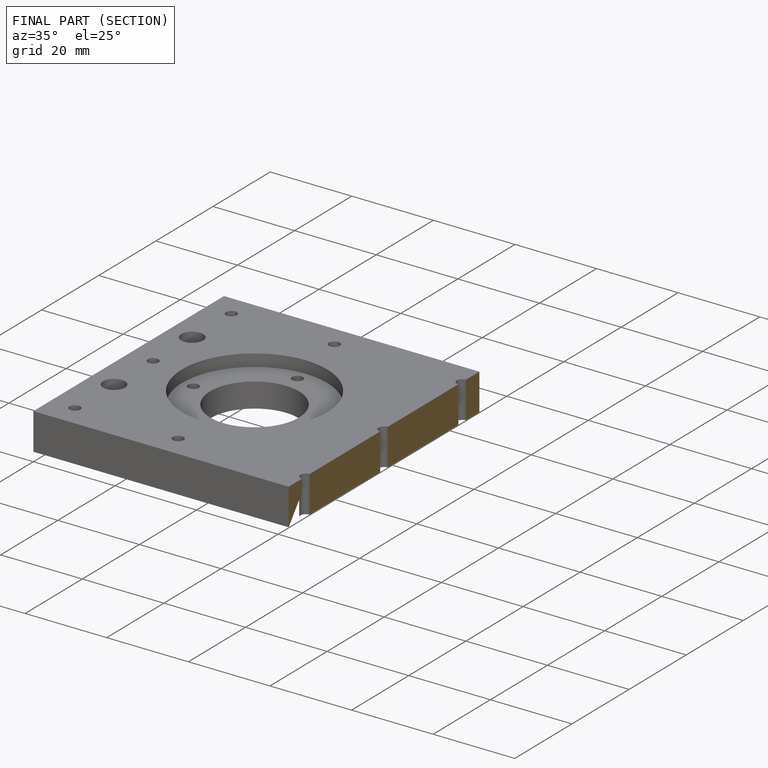
[diagram: finished part — half-section view (interior)]
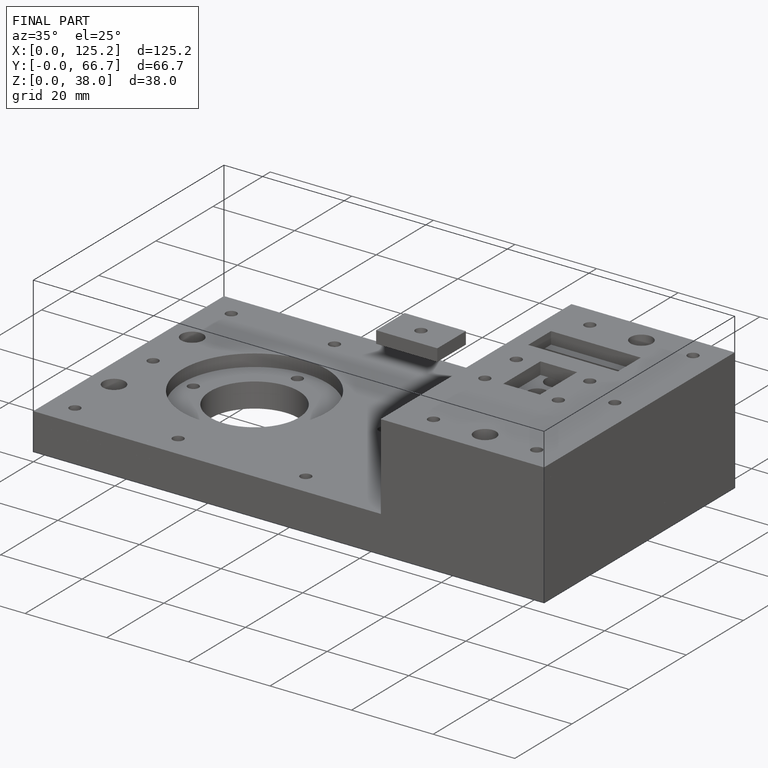
[diagram: finished part — iso view with bounding-box wireframe]
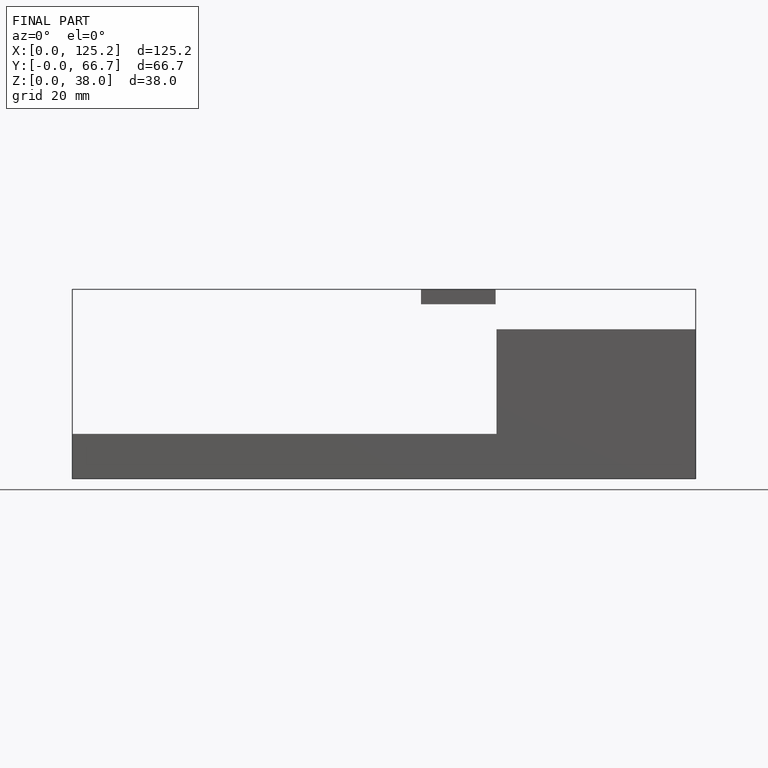
[diagram: finished part — front view with bounding-box wireframe]
